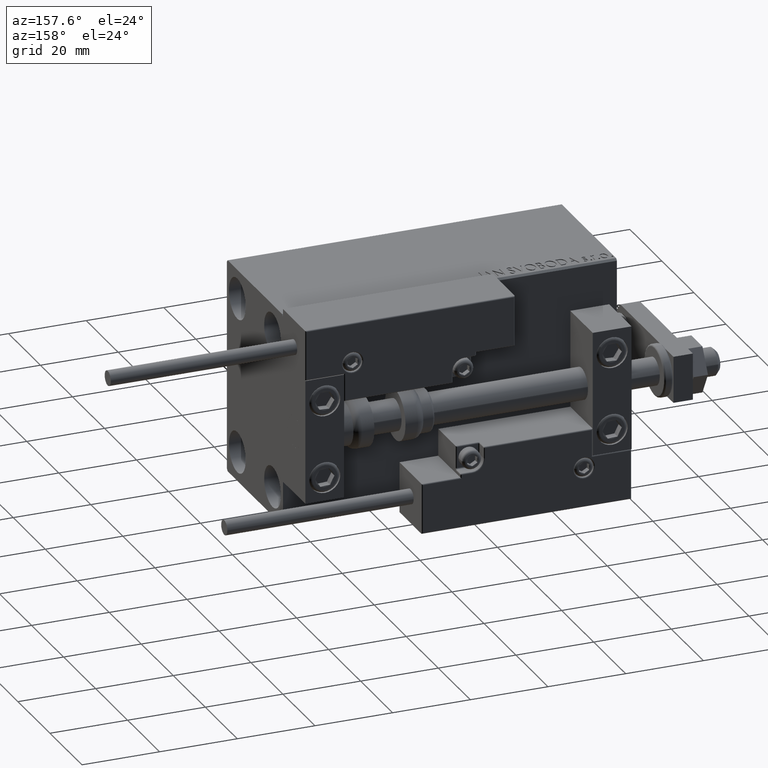
[diagram: clean part render]
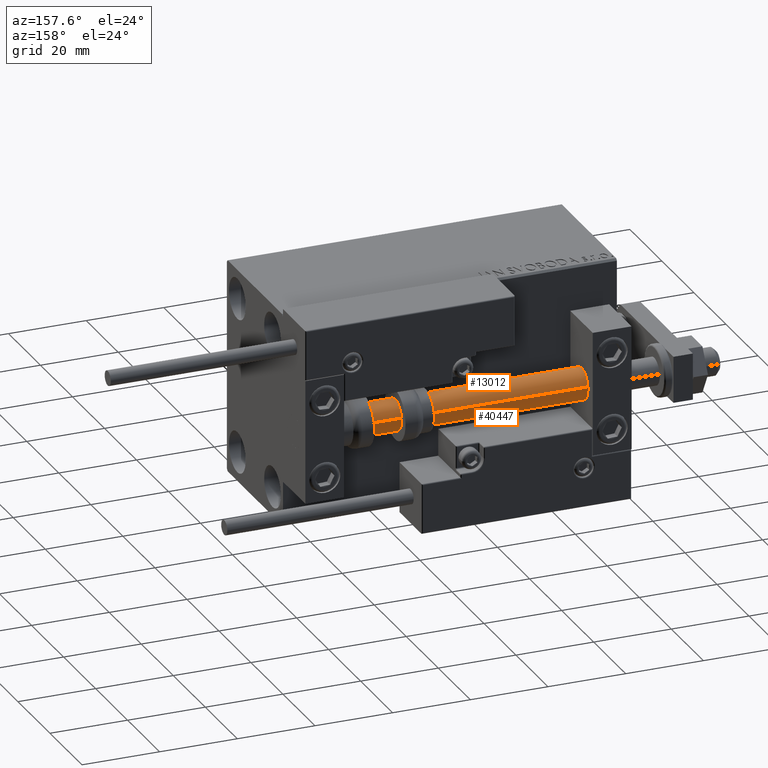
[diagram: same view with one multi-face feature highlighted, each face labeled with its STEP entity id]
A machine part, auxiliary view. The highlighted faces form ONE feature: a constant-radius fillet chain: 2 tangent blend faces with common blend radius 4 mm. The faces share edges in the B-rep.
Their STEP definitions:
[1] entity #13012 (Cylinder):
#1382 = EDGE_CURVE ( 'NONE', #40972, #30963, #30638, .T. ) ;
#4626 = AXIS2_PLACEMENT_3D ( 'NONE', #41133, #43941, #28731 ) ;
#5381 = CYLINDRICAL_SURFACE ( 'NONE', #4626, 4.000000000000000000 ) ;
#5517 = CIRCLE ( 'NONE', #48431, 4.000000000000000000 ) ;
#7887 = CARTESIAN_POINT ( 'NONE',  ( 0.000000000000000000, 0.000000000000000000, 2.000000000000029310 ) ) ;
#8289 = DIRECTION ( 'NONE',  ( -0.000000000000000000, -0.000000000000000000, -1.000000000000000000 ) ) ;
#9466 = DIRECTION ( 'NONE',  ( 0.000000000000000000, 0.000000000000000000, 1.000000000000000000 ) ) ;
#13012 = ADVANCED_FACE ( 'NONE', ( #21875 ), #5381, .T. ) ;
#15510 = LINE ( 'NONE', #31008, #43917 ) ;
#15527 = CARTESIAN_POINT ( 'NONE',  ( 4.000000000000000000, 4.898587196589412829E-16, 86.00000000000000000 ) ) ;
#15740 = VERTEX_POINT ( 'NONE', #18312 ) ;
#15817 = EDGE_CURVE ( 'NONE', #30963, #31841, #5517, .T. ) ;
#18312 = CARTESIAN_POINT ( 'NONE',  ( -4.000000000000000000, 0.000000000000000000, 86.00000000000000000 ) ) ;
#18715 = CIRCLE ( 'NONE', #47859, 4.000000000000000000 ) ;
#21875 = FACE_OUTER_BOUND ( 'NONE', #27030, .T. ) ;
#22782 = CARTESIAN_POINT ( 'NONE',  ( 4.000000000000000000, 4.898587196589412829E-16, 86.00000000000000000 ) ) ;
#26723 = ORIENTED_EDGE ( 'NONE', *, *, #15817, .T. ) ;
#26824 = ORIENTED_EDGE ( 'NONE', *, *, #40683, .F. ) ;
#27030 = EDGE_LOOP ( 'NONE', ( #26824, #36386, #26723, #34326 ) ) ;
#28264 = DIRECTION ( 'NONE',  ( 1.000000000000000000, 0.000000000000000000, 0.000000000000000000 ) ) ;
#28731 = DIRECTION ( 'NONE',  ( -1.000000000000000000, 0.000000000000000000, 0.000000000000000000 ) ) ;
#30638 = LINE ( 'NONE', #22782, #41732 ) ;
#30963 = VERTEX_POINT ( 'NONE', #49948 ) ;
#31008 = CARTESIAN_POINT ( 'NONE',  ( -4.000000000000000000, 0.000000000000000000, 86.00000000000000000 ) ) ;
#31841 = VERTEX_POINT ( 'NONE', #48356 ) ;
#34326 = ORIENTED_EDGE ( 'NONE', *, *, #44003, .F. ) ;
#35056 = DIRECTION ( 'NONE',  ( 1.000000000000000000, 0.000000000000000000, 0.000000000000000000 ) ) ;
#35872 = CARTESIAN_POINT ( 'NONE',  ( 0.000000000000000000, 0.000000000000000000, 86.00000000000000000 ) ) ;
#36386 = ORIENTED_EDGE ( 'NONE', *, *, #1382, .T. ) ;
#38104 = DIRECTION ( 'NONE',  ( -0.000000000000000000, -0.000000000000000000, -1.000000000000000000 ) ) ;
#38839 = DIRECTION ( 'NONE',  ( -0.000000000000000000, -0.000000000000000000, 1.000000000000000000 ) ) ;
#40683 = EDGE_CURVE ( 'NONE', #40972, #15740, #18715, .T. ) ;
#40972 = VERTEX_POINT ( 'NONE', #15527 ) ;
#41133 = CARTESIAN_POINT ( 'NONE',  ( 0.000000000000000000, 0.000000000000000000, 86.00000000000000000 ) ) ;
#41732 = VECTOR ( 'NONE', #8289, 1000.000000000000000 ) ;
#43917 = VECTOR ( 'NONE', #38104, 1000.000000000000000 ) ;
#43941 = DIRECTION ( 'NONE',  ( -0.000000000000000000, -0.000000000000000000, -1.000000000000000000 ) ) ;
#44003 = EDGE_CURVE ( 'NONE', #15740, #31841, #15510, .T. ) ;
#47859 = AXIS2_PLACEMENT_3D ( 'NONE', #35872, #9466, #28264 ) ;
#48356 = CARTESIAN_POINT ( 'NONE',  ( -4.000000000000000000, 0.000000000000000000, 2.000000000000029310 ) ) ;
#48431 = AXIS2_PLACEMENT_3D ( 'NONE', #7887, #38839, #35056 ) ;
#49948 = CARTESIAN_POINT ( 'NONE',  ( 4.000000000000000000, 4.898587196589412829E-16, 2.000000000000029310 ) ) ;
[2] entity #40447 (Cylinder):
#1382 = EDGE_CURVE ( 'NONE', #40972, #30963, #30638, .T. ) ;
#7780 = ORIENTED_EDGE ( 'NONE', *, *, #44003, .T. ) ;
#8060 = EDGE_LOOP ( 'NONE', ( #29887, #43745, #7780, #30922 ) ) ;
#8289 = DIRECTION ( 'NONE',  ( -0.000000000000000000, -0.000000000000000000, -1.000000000000000000 ) ) ;
#10030 = FACE_OUTER_BOUND ( 'NONE', #8060, .T. ) ;
#15510 = LINE ( 'NONE', #31008, #43917 ) ;
#15527 = CARTESIAN_POINT ( 'NONE',  ( 4.000000000000000000, 4.898587196589412829E-16, 86.00000000000000000 ) ) ;
#15740 = VERTEX_POINT ( 'NONE', #18312 ) ;
#18312 = CARTESIAN_POINT ( 'NONE',  ( -4.000000000000000000, 0.000000000000000000, 86.00000000000000000 ) ) ;
#21714 = DIRECTION ( 'NONE',  ( -1.000000000000000000, 0.000000000000000000, 0.000000000000000000 ) ) ;
#22782 = CARTESIAN_POINT ( 'NONE',  ( 4.000000000000000000, 4.898587196589412829E-16, 86.00000000000000000 ) ) ;
#23980 = DIRECTION ( 'NONE',  ( 0.000000000000000000, 0.000000000000000000, 1.000000000000000000 ) ) ;
#24410 = AXIS2_PLACEMENT_3D ( 'NONE', #34511, #43092, #49947 ) ;
#24764 = CYLINDRICAL_SURFACE ( 'NONE', #43009, 4.000000000000000000 ) ;
#26736 = EDGE_CURVE ( 'NONE', #31841, #30963, #45497, .T. ) ;
#27785 = CARTESIAN_POINT ( 'NONE',  ( 0.000000000000000000, 0.000000000000000000, 86.00000000000000000 ) ) ;
#29887 = ORIENTED_EDGE ( 'NONE', *, *, #1382, .F. ) ;
#30638 = LINE ( 'NONE', #22782, #41732 ) ;
#30922 = ORIENTED_EDGE ( 'NONE', *, *, #26736, .T. ) ;
#30963 = VERTEX_POINT ( 'NONE', #49948 ) ;
#31008 = CARTESIAN_POINT ( 'NONE',  ( -4.000000000000000000, 0.000000000000000000, 86.00000000000000000 ) ) ;
#31841 = VERTEX_POINT ( 'NONE', #48356 ) ;
#34100 = CIRCLE ( 'NONE', #38927, 4.000000000000000000 ) ;
#34511 = CARTESIAN_POINT ( 'NONE',  ( 0.000000000000000000, 0.000000000000000000, 2.000000000000029310 ) ) ;
#36687 = DIRECTION ( 'NONE',  ( -0.000000000000000000, -0.000000000000000000, -1.000000000000000000 ) ) ;
#38104 = DIRECTION ( 'NONE',  ( -0.000000000000000000, -0.000000000000000000, -1.000000000000000000 ) ) ;
#38927 = AXIS2_PLACEMENT_3D ( 'NONE', #27785, #23980, #39443 ) ;
#39301 = EDGE_CURVE ( 'NONE', #15740, #40972, #34100, .T. ) ;
#39443 = DIRECTION ( 'NONE',  ( 1.000000000000000000, 0.000000000000000000, 0.000000000000000000 ) ) ;
#40447 = ADVANCED_FACE ( 'NONE', ( #10030 ), #24764, .T. ) ;
#40972 = VERTEX_POINT ( 'NONE', #15527 ) ;
#41732 = VECTOR ( 'NONE', #8289, 1000.000000000000000 ) ;
#43009 = AXIS2_PLACEMENT_3D ( 'NONE', #48092, #36687, #21714 ) ;
#43092 = DIRECTION ( 'NONE',  ( -0.000000000000000000, -0.000000000000000000, 1.000000000000000000 ) ) ;
#43745 = ORIENTED_EDGE ( 'NONE', *, *, #39301, .F. ) ;
#43917 = VECTOR ( 'NONE', #38104, 1000.000000000000000 ) ;
#44003 = EDGE_CURVE ( 'NONE', #15740, #31841, #15510, .T. ) ;
#45497 = CIRCLE ( 'NONE', #24410, 4.000000000000000000 ) ;
#48092 = CARTESIAN_POINT ( 'NONE',  ( 0.000000000000000000, 0.000000000000000000, 86.00000000000000000 ) ) ;
#48356 = CARTESIAN_POINT ( 'NONE',  ( -4.000000000000000000, 0.000000000000000000, 2.000000000000029310 ) ) ;
#49947 = DIRECTION ( 'NONE',  ( 1.000000000000000000, 0.000000000000000000, 0.000000000000000000 ) ) ;
#49948 = CARTESIAN_POINT ( 'NONE',  ( 4.000000000000000000, 4.898587196589412829E-16, 2.000000000000029310 ) ) ;